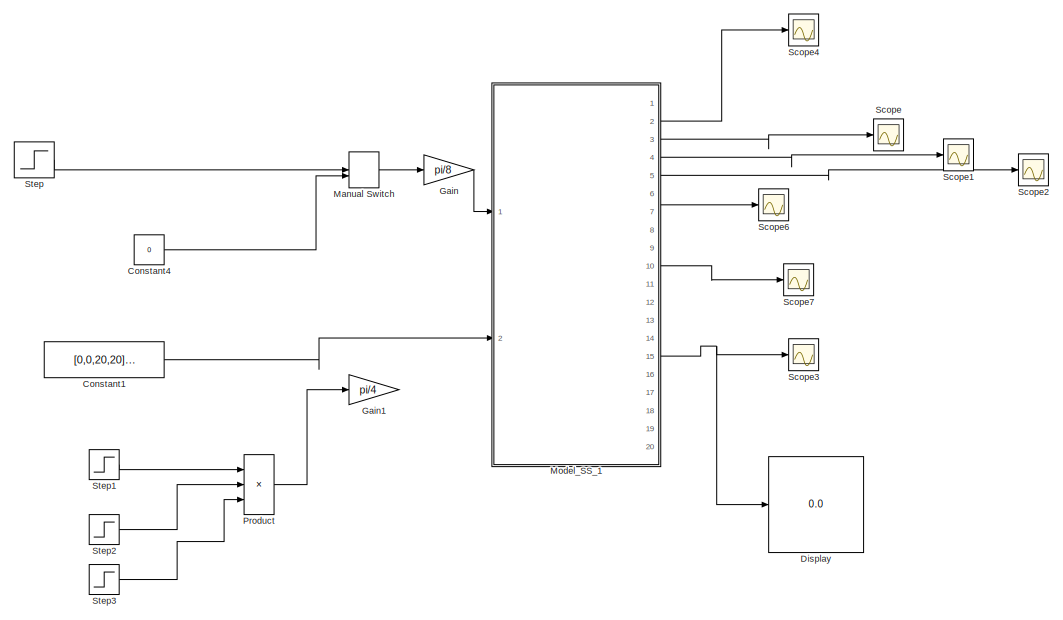
[diagram: root canvas - part 1/2, left side, full height]
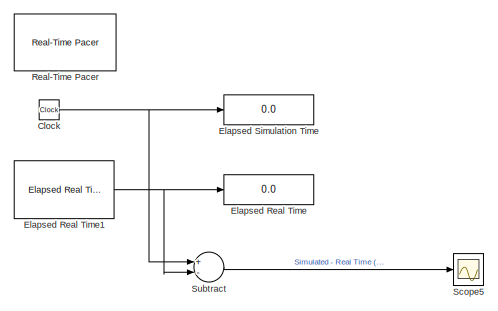
[diagram: root canvas - part 2/2, bottom right region]
MODEL slx_54ccdc9a7933
KIND model
CONFIG AbsTol = auto
CONFIG EnableMultiTasking = off
CONFIG FixedStep = auto
CONFIG MaxStep = auto
CONFIG MinStep = auto
CONFIG RelTol = 1e-3
CONFIG SampleTimeConstraint = Unconstrained
CONFIG Solver = ode45
CONFIG SolverName = ode45
CONFIG StartTime = 0.0
CONFIG StopTime = 50
BLOCK [Clock] Clock
BLOCK [Constant] Constant1
  Value = [0,0,20,20]*1
BLOCK [Constant] Constant4
  Value = 0
BLOCK [Display] Display
  Decimation = 1
  Ports = [1]
BLOCK [Display] Elapsed Real Time
  Decimation = 2
  Ports = [1]
BLOCK [Reference] Elapsed Real Time1  REF=realtime_pacer_lib/Elapsed Real Time
  Ports = [0, 1]
  SourceBlock = realtime_pacer_lib/Elapsed Real Time
  SourceType = RealTime_Elapsed
BLOCK [Display] Elapsed Simulation Time
  Decimation = 2
  Ports = [1]
BLOCK [Gain] Gain
  Gain = pi/8
  OutDataTypeStr = Inherit: Inherit via internal rule
  ParamDataTypeStr = Inherit: Inherit via internal rule
  SaturateOnIntegerOverflow = off
BLOCK [Gain] Gain1
  Gain = pi/4
  OutDataTypeStr = Inherit: Inherit via internal rule
  ParamDataTypeStr = Inherit: Inherit via internal rule
  SaturateOnIntegerOverflow = off
BLOCK [ManualSwitch] Manual Switch
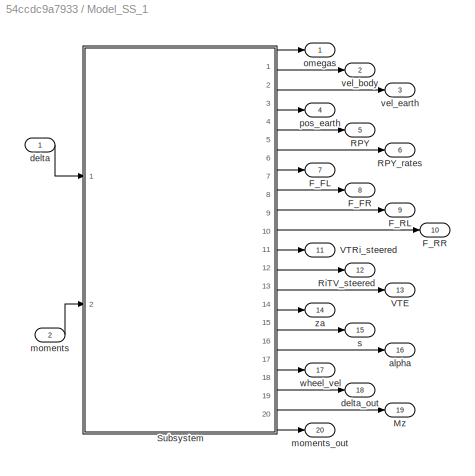
BLOCK [SubSystem] Model_SS_1
  Ports = [2, 20]
  RequestExecContextInheritance = off
  Variant = off
BLOCK [Outport] Model_SS_1/F_FL
  IconDisplay = Port number
  Port = 7
BLOCK [Outport] Model_SS_1/F_FR
  IconDisplay = Port number
  Port = 8
BLOCK [Outport] Model_SS_1/F_RL
  IconDisplay = Port number
  Port = 9
BLOCK [Outport] Model_SS_1/F_RR
  IconDisplay = Port number
  Port = 10
BLOCK [Outport] Model_SS_1/Mz
  IconDisplay = Port number
  Port = 19
BLOCK [Outport] Model_SS_1/RPY
  IconDisplay = Port number
  Port = 5
BLOCK [Outport] Model_SS_1/RPY_rates
  IconDisplay = Port number
  Port = 6
BLOCK [Outport] Model_SS_1/RiTV_steered
  IconDisplay = Port number
  Port = 12
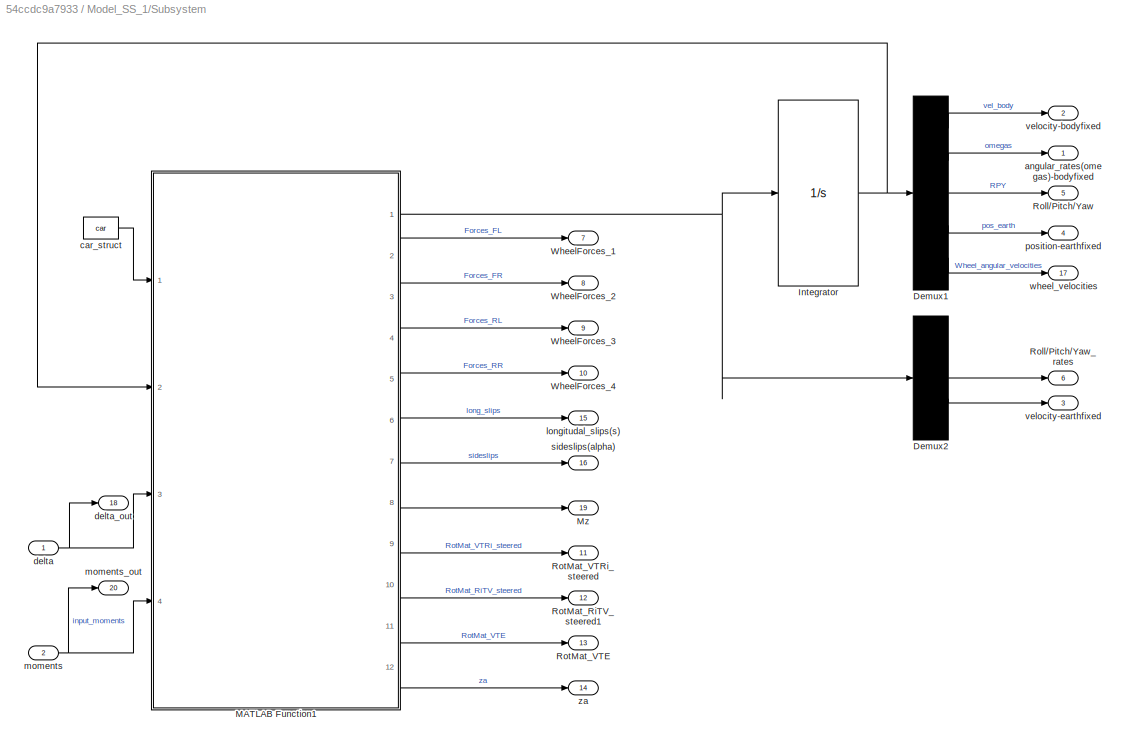
BLOCK [SubSystem] Model_SS_1/Subsystem
  Ports = [2, 20]
  RequestExecContextInheritance = off
  Variant = off
BLOCK [Demux] Model_SS_1/Subsystem/Demux1
  DisplayOption = bar
  Outputs = [3,3,3,3,4]
  Ports = [1, 5]
BLOCK [Demux] Model_SS_1/Subsystem/Demux2
  DisplayOption = bar
  Outputs = [3,3,3,3,4]
  Ports = [1, 5]
BLOCK [Integrator] Model_SS_1/Subsystem/Integrator
  InitialCondition = car_init
  Ports = [1, 1]
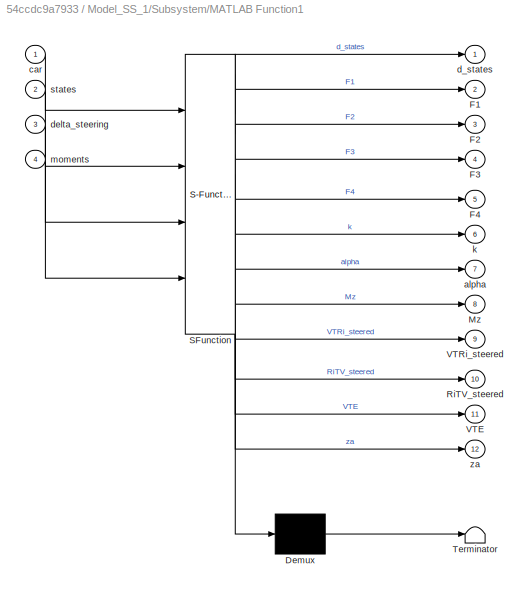
BLOCK [SubSystem] Model_SS_1/Subsystem/MATLAB Function1
  ErrorFcn = Stateflow.Translate.translate
  PermitHierarchicalResolution = ExplicitOnly
  Ports = [4, 12]
  RequestExecContextInheritance = off
  SFBlockType = MATLAB Function
  TreatAsAtomicUnit = on
  Variant = off
BLOCK [Demux] Model_SS_1/Subsystem/MATLAB Function1/ Demux 
  Outputs = 1
  Ports = [1, 1]
BLOCK [S-Function] Model_SS_1/Subsystem/MATLAB Function1/ SFunction 
  EnableBusSupport = on
  FunctionName = sf_sfun
  PortCounts = [4 13]
  Ports = [4, 13]
  SFcnIsStateOwnerBlock = off
  SFunctionDeploymentMode = off
  Tag = Stateflow S-Function test_IO_block_new_test 2
BLOCK [Terminator] Model_SS_1/Subsystem/MATLAB Function1/ Terminator 
BLOCK [Outport] Model_SS_1/Subsystem/MATLAB Function1/F1
  IconDisplay = Port number
  Port = 2
BLOCK [Outport] Model_SS_1/Subsystem/MATLAB Function1/F2
  IconDisplay = Port number
  Port = 3
BLOCK [Outport] Model_SS_1/Subsystem/MATLAB Function1/F3
  IconDisplay = Port number
  Port = 4
BLOCK [Outport] Model_SS_1/Subsystem/MATLAB Function1/F4
  IconDisplay = Port number
  Port = 5
BLOCK [Outport] Model_SS_1/Subsystem/MATLAB Function1/Mz
  IconDisplay = Port number
  Port = 8
BLOCK [Outport] Model_SS_1/Subsystem/MATLAB Function1/RiTV_steered
  IconDisplay = Port number
  Port = 10
BLOCK [Outport] Model_SS_1/Subsystem/MATLAB Function1/VTE
  IconDisplay = Port number
  Port = 11
BLOCK [Outport] Model_SS_1/Subsystem/MATLAB Function1/VTRi_steered
  IconDisplay = Port number
  Port = 9
BLOCK [Outport] Model_SS_1/Subsystem/MATLAB Function1/alpha
  IconDisplay = Port number
  Port = 7
BLOCK [Inport] Model_SS_1/Subsystem/MATLAB Function1/car
  IconDisplay = Port number
BLOCK [Outport] Model_SS_1/Subsystem/MATLAB Function1/d_states
  IconDisplay = Port number
BLOCK [Inport] Model_SS_1/Subsystem/MATLAB Function1/delta_steering
  IconDisplay = Port number
  Port = 3
BLOCK [Outport] Model_SS_1/Subsystem/MATLAB Function1/k
  IconDisplay = Port number
  Port = 6
BLOCK [Inport] Model_SS_1/Subsystem/MATLAB Function1/moments
  IconDisplay = Port number
  Port = 4
BLOCK [Inport] Model_SS_1/Subsystem/MATLAB Function1/states
  IconDisplay = Port number
  Port = 2
BLOCK [Outport] Model_SS_1/Subsystem/MATLAB Function1/za
  IconDisplay = Port number
  Port = 12
BLOCK [Outport] Model_SS_1/Subsystem/Mz
  IconDisplay = Port number
  Port = 19
BLOCK [Outport] Model_SS_1/Subsystem/Roll//Pitch//Yaw
  IconDisplay = Port number
  Port = 5
  PortDimensions = 3
BLOCK [Outport] Model_SS_1/Subsystem/Roll//Pitch//Yaw_rates
  IconDisplay = Port number
  Port = 6
  PortDimensions = 3
BLOCK [Outport] Model_SS_1/Subsystem/RotMat_RiTV_steered1
  IconDisplay = Port number
  Port = 12
BLOCK [Outport] Model_SS_1/Subsystem/RotMat_VTE
  IconDisplay = Port number
  Port = 13
BLOCK [Outport] Model_SS_1/Subsystem/RotMat_VTRi_steered
  IconDisplay = Port number
  Port = 11
BLOCK [Outport] Model_SS_1/Subsystem/WheelForces_1
  IconDisplay = Port number
  Port = 7
BLOCK [Outport] Model_SS_1/Subsystem/WheelForces_2
  IconDisplay = Port number
  Port = 8
BLOCK [Outport] Model_SS_1/Subsystem/WheelForces_3
  IconDisplay = Port number
  Port = 9
BLOCK [Outport] Model_SS_1/Subsystem/WheelForces_4
  IconDisplay = Port number
  Port = 10
BLOCK [Outport] Model_SS_1/Subsystem/angular_rates(omegas)-bodyfixed
  IconDisplay = Port number
  PortDimensions = 3
BLOCK [Constant] Model_SS_1/Subsystem/car_struct
  OutDataTypeStr = Bus: car_bus
  Value = car
BLOCK [Inport] Model_SS_1/Subsystem/delta
  IconDisplay = Port number
BLOCK [Outport] Model_SS_1/Subsystem/delta_out
  IconDisplay = Port number
  Port = 18
BLOCK [Outport] Model_SS_1/Subsystem/longitudal_slips(s)
  IconDisplay = Port number
  Port = 15
BLOCK [Inport] Model_SS_1/Subsystem/moments
  IconDisplay = Port number
  Port = 2
BLOCK [Outport] Model_SS_1/Subsystem/moments_out
  IconDisplay = Port number
  Port = 20
BLOCK [Outport] Model_SS_1/Subsystem/position-earthfixed
  IconDisplay = Port number
  Port = 4
  PortDimensions = 3
BLOCK [Outport] Model_SS_1/Subsystem/sideslips(alpha)
  IconDisplay = Port number
  Port = 16
BLOCK [Outport] Model_SS_1/Subsystem/velocity-bodyfixed
  IconDisplay = Port number
  Port = 2
  PortDimensions = 3
BLOCK [Outport] Model_SS_1/Subsystem/velocity-earthfixed
  IconDisplay = Port number
  Port = 3
  PortDimensions = 3
BLOCK [Outport] Model_SS_1/Subsystem/wheel_velocities
  IconDisplay = Port number
  Port = 17
BLOCK [Outport] Model_SS_1/Subsystem/za
  IconDisplay = Port number
  Port = 14
BLOCK [Outport] Model_SS_1/VTE
  IconDisplay = Port number
  Port = 13
BLOCK [Outport] Model_SS_1/VTRi_steered
  IconDisplay = Port number
  Port = 11
BLOCK [Outport] Model_SS_1/alpha
  IconDisplay = Port number
  Port = 16
BLOCK [Inport] Model_SS_1/delta
  IconDisplay = Port number
BLOCK [Outport] Model_SS_1/delta_out
  IconDisplay = Port number
  Port = 18
BLOCK [Inport] Model_SS_1/moments 
  IconDisplay = Port number
  Port = 2
  PortDimensions = 4
BLOCK [Outport] Model_SS_1/moments_out
  IconDisplay = Port number
  Port = 20
BLOCK [Outport] Model_SS_1/omegas
  IconDisplay = Port number
BLOCK [Outport] Model_SS_1/pos_earth
  IconDisplay = Port number
  Port = 4
BLOCK [Outport] Model_SS_1/s
  IconDisplay = Port number
  Port = 15
BLOCK [Outport] Model_SS_1/vel_body
  IconDisplay = Port number
  Port = 2
BLOCK [Outport] Model_SS_1/vel_earth
  IconDisplay = Port number
  Port = 3
BLOCK [Outport] Model_SS_1/wheel_vel
  IconDisplay = Port number
  Port = 17
BLOCK [Outport] Model_SS_1/za
  IconDisplay = Port number
  Port = 14
BLOCK [Product] Product
  InputSameDT = off
  Inputs = 3
  OutDataTypeStr = Inherit: Inherit via internal rule
  Ports = [3, 1]
  RndMeth = Floor
  SaturateOnIntegerOverflow = off
BLOCK [Reference] Real-Time Pacer  REF=realtime_pacer_lib/Real-Time Pacer
  Commented = on
  Ports = []
  SourceBlock = realtime_pacer_lib/Real-Time Pacer
  SourceType = RealTime_Pacer
BLOCK [Scope] Scope
  NumInputPorts = 1
  Ports = [1]
  ScopeSpecificationString = Simulink.scopes.TimeScopeBlockCfg('CurrentConfiguration', extmgr.ConfigurationSet(extmgr.Configuration('Core','General UI',true),extmgr.Configuration('Core','Source UI',true),extmgr.Configuration('Sources','WiredSimulink',true,'DataLoggingSaveFormat','Array','DataLoggingDecimation','1','DataLoggingDecimateData',true),extmgr.Configuration('Visuals','Time Domain',true,'SerializedDisplays',{struct('M...<+1679ch>
BLOCK [Scope] Scope1
  NumInputPorts = 1
  Ports = [1]
  ScopeSpecificationString = Simulink.scopes.TimeScopeBlockCfg('CurrentConfiguration', extmgr.ConfigurationSet(extmgr.Configuration('Core','General UI',true),extmgr.Configuration('Core','Source UI',true),extmgr.Configuration('Sources','WiredSimulink',true,'DataLoggingSaveFormat','Array','DataLoggingDecimation','1','DataLoggingDecimateData',true),extmgr.Configuration('Visuals','Time Domain',true,'SerializedDisplays',{struct('M...<+1598ch>
BLOCK [Scope] Scope2
  NumInputPorts = 1
  Ports = [1]
  ScopeSpecificationString = Simulink.scopes.TimeScopeBlockCfg('CurrentConfiguration', extmgr.ConfigurationSet(extmgr.Configuration('Core','General UI',true),extmgr.Configuration('Core','Source UI',true),extmgr.Configuration('Sources','WiredSimulink',true,'DataLoggingSaveFormat','Array','DataLoggingDecimation','1','DataLoggingDecimateData',true),extmgr.Configuration('Visuals','Time Domain',true,'SerializedDisplays',{struct('M...<+1653ch>
BLOCK [Scope] Scope3
  NumInputPorts = 1
  Ports = [1]
  ScopeSpecificationString = Simulink.scopes.TimeScopeBlockCfg('CurrentConfiguration', extmgr.ConfigurationSet(extmgr.Configuration('Core','General UI',true),extmgr.Configuration('Core','Source UI',true),extmgr.Configuration('Sources','WiredSimulink',true,'DataLoggingSaveFormat','Array','DataLoggingDecimation','1','DataLoggingDecimateData',true),extmgr.Configuration('Visuals','Time Domain',true,'SerializedDisplays',{struct('M...<+1730ch>
BLOCK [Scope] Scope4
  NumInputPorts = 1
  Ports = [1]
  ScopeSpecificationString = Simulink.scopes.TimeScopeBlockCfg('CurrentConfiguration', extmgr.ConfigurationSet(extmgr.Configuration('Core','General UI',true),extmgr.Configuration('Core','Source UI',true),extmgr.Configuration('Sources','WiredSimulink',true,'DataLoggingSaveFormat','Array','DataLoggingDecimation','1','DataLoggingDecimateData',true),extmgr.Configuration('Visuals','Time Domain',true,'SerializedDisplays',{struct('M...<+1681ch>
BLOCK [Scope] Scope5
  NumInputPorts = 1
  Ports = [1]
  ScopeSpecificationString = Simulink.scopes.TimeScopeBlockCfg('CurrentConfiguration', extmgr.ConfigurationSet(extmgr.Configuration('Core','General UI',true),extmgr.Configuration('Core','Source UI',true),extmgr.Configuration('Sources','WiredSimulink',true,'DataLoggingSaveFormat','StructureWithTime','DataLoggingDecimation','1','DataLoggingDecimateData',true,'DataLoggingVariableName','ScopeData1'),extmgr.Configuration('Visuals'...<+1745ch>
BLOCK [Scope] Scope6
  NumInputPorts = 1
  Ports = [1]
  ScopeSpecificationString = Simulink.scopes.TimeScopeBlockCfg('CurrentConfiguration', extmgr.ConfigurationSet(extmgr.Configuration('Core','General UI',true),extmgr.Configuration('Core','Source UI',true),extmgr.Configuration('Sources','WiredSimulink',true,'DataLoggingVariableName','ScopeData1'),extmgr.Configuration('Visuals','Time Domain',true,'SerializedDisplays',{struct('MinYLimReal','-991.88439','MaxYLimReal','6066.10327',...<+1474ch>
BLOCK [Scope] Scope7
  NumInputPorts = 1
  Ports = [1]
  ScopeSpecificationString = Simulink.scopes.TimeScopeBlockCfg('CurrentConfiguration', extmgr.ConfigurationSet(extmgr.Configuration('Core','General UI',true),extmgr.Configuration('Core','Source UI',true),extmgr.Configuration('Sources','WiredSimulink',true,'DataLoggingVariableName','ScopeData2'),extmgr.Configuration('Visuals','Time Domain',true,'SerializedDisplays',{struct('MinYLimReal','-5617.10894','MaxYLimReal','5565.72855'...<+1507ch>
BLOCK [Step] Step
  SampleTime = 0
  Time = 5
BLOCK [Step] Step1
  SampleTime = 0
  Time = 0
BLOCK [Step] Step2
  SampleTime = 0
  Time = 10
BLOCK [Step] Step3
  After = -1
  Before = 1
  SampleTime = 0
  Time = 20
BLOCK [Sum] Subtract
  InputSameDT = off
  Inputs = +-
  OutDataTypeStr = Inherit: Inherit via internal rule
  Ports = [2, 1]
  SaturateOnIntegerOverflow = off
NET Clock:1 -> Elapsed Simulation Time:1, Subtract:1
LINE Constant1:1 -> Model_SS_1:2
LINE Constant4:1 -> Manual Switch:2
NET Elapsed Real Time1:1 -> Elapsed Real Time:1, Subtract:2
LINE Gain:1 -> Model_SS_1:1
LINE Manual Switch:1 -> Gain:1
LINE Model_SS_1/Subsystem/Demux1:1 -> Model_SS_1/Subsystem/velocity-bodyfixed:1
LINE Model_SS_1/Subsystem/Demux1:2 -> Model_SS_1/Subsystem/angular_rates(omegas)-bodyfixed:1
LINE Model_SS_1/Subsystem/Demux1:3 -> Model_SS_1/Subsystem/Roll//Pitch//Yaw:1
LINE Model_SS_1/Subsystem/Demux1:4 -> Model_SS_1/Subsystem/position-earthfixed:1
LINE Model_SS_1/Subsystem/Demux1:5 -> Model_SS_1/Subsystem/wheel_velocities:1
LINE Model_SS_1/Subsystem/Demux2:3 -> Model_SS_1/Subsystem/Roll//Pitch//Yaw_rates:1
LINE Model_SS_1/Subsystem/Demux2:4 -> Model_SS_1/Subsystem/velocity-earthfixed:1
NET Model_SS_1/Subsystem/Integrator:1 -> Model_SS_1/Subsystem/Demux1:1, Model_SS_1/Subsystem/MATLAB Function1:2
NET Model_SS_1/Subsystem/MATLAB Function1:1 -> Model_SS_1/Subsystem/Demux2:1, Model_SS_1/Subsystem/Integrator:1
LINE Model_SS_1/Subsystem/MATLAB Function1:10 -> Model_SS_1/Subsystem/RotMat_RiTV_steered1:1
LINE Model_SS_1/Subsystem/MATLAB Function1:11 -> Model_SS_1/Subsystem/RotMat_VTE:1
LINE Model_SS_1/Subsystem/MATLAB Function1:12 -> Model_SS_1/Subsystem/za:1
LINE Model_SS_1/Subsystem/MATLAB Function1:2 -> Model_SS_1/Subsystem/WheelForces_1:1
LINE Model_SS_1/Subsystem/MATLAB Function1:3 -> Model_SS_1/Subsystem/WheelForces_2:1
LINE Model_SS_1/Subsystem/MATLAB Function1:4 -> Model_SS_1/Subsystem/WheelForces_3:1
LINE Model_SS_1/Subsystem/MATLAB Function1:5 -> Model_SS_1/Subsystem/WheelForces_4:1
LINE Model_SS_1/Subsystem/MATLAB Function1:6 -> Model_SS_1/Subsystem/longitudal_slips(s):1
LINE Model_SS_1/Subsystem/MATLAB Function1:7 -> Model_SS_1/Subsystem/sideslips(alpha):1
LINE Model_SS_1/Subsystem/MATLAB Function1:8 -> Model_SS_1/Subsystem/Mz:1
LINE Model_SS_1/Subsystem/MATLAB Function1:9 -> Model_SS_1/Subsystem/RotMat_VTRi_steered:1
LINE Model_SS_1/Subsystem/car_struct:1 -> Model_SS_1/Subsystem/MATLAB Function1:1
NET Model_SS_1/Subsystem/delta:1 -> Model_SS_1/Subsystem/MATLAB Function1:3, Model_SS_1/Subsystem/delta_out:1
NET Model_SS_1/Subsystem/moments:1 -> Model_SS_1/Subsystem/MATLAB Function1:4, Model_SS_1/Subsystem/moments_out:1
LINE Model_SS_1/Subsystem:1 -> Model_SS_1/omegas:1
LINE Model_SS_1/Subsystem:10 -> Model_SS_1/F_RR:1
LINE Model_SS_1/Subsystem:11 -> Model_SS_1/VTRi_steered:1
LINE Model_SS_1/Subsystem:12 -> Model_SS_1/RiTV_steered:1
LINE Model_SS_1/Subsystem:13 -> Model_SS_1/VTE:1
LINE Model_SS_1/Subsystem:14 -> Model_SS_1/za:1
LINE Model_SS_1/Subsystem:15 -> Model_SS_1/s:1
LINE Model_SS_1/Subsystem:16 -> Model_SS_1/alpha:1
LINE Model_SS_1/Subsystem:17 -> Model_SS_1/wheel_vel:1
LINE Model_SS_1/Subsystem:18 -> Model_SS_1/delta_out:1
LINE Model_SS_1/Subsystem:19 -> Model_SS_1/Mz:1
LINE Model_SS_1/Subsystem:2 -> Model_SS_1/vel_body:1
LINE Model_SS_1/Subsystem:20 -> Model_SS_1/moments_out:1
LINE Model_SS_1/Subsystem:3 -> Model_SS_1/vel_earth:1
LINE Model_SS_1/Subsystem:4 -> Model_SS_1/pos_earth:1
LINE Model_SS_1/Subsystem:5 -> Model_SS_1/RPY:1
LINE Model_SS_1/Subsystem:6 -> Model_SS_1/RPY_rates:1
LINE Model_SS_1/Subsystem:7 -> Model_SS_1/F_FL:1
LINE Model_SS_1/Subsystem:8 -> Model_SS_1/F_FR:1
LINE Model_SS_1/Subsystem:9 -> Model_SS_1/F_RL:1
LINE Model_SS_1/delta:1 -> Model_SS_1/Subsystem:1
LINE Model_SS_1/moments :1 -> Model_SS_1/Subsystem:2
LINE Model_SS_1:10 -> Scope7:1
NET Model_SS_1:15 -> Display:1, Scope3:1
LINE Model_SS_1:2 -> Scope4:1
LINE Model_SS_1:3 -> Scope:1
LINE Model_SS_1:4 -> Scope1:1
LINE Model_SS_1:5 -> Scope2:1
LINE Model_SS_1:7 -> Scope6:1
LINE Product:1 -> Gain1:1
LINE Step1:1 -> Product:1
LINE Step2:1 -> Product:2
LINE Step3:1 -> Product:3
LINE Step:1 -> Manual Switch:1
LINE Subtract:1 -> Scope5:1
note: NET lines group one-source signal fan-out (src -> all destinations, sorted); 1:1 wires keep LINE
CHART Model_SS_1/Subsystem/MATLAB Function1 states=1 transitions=1
  STATE_LABEL 'eML_blk_kernel()'
  STATE_LABEL 'SCRIPT:\nfunction [ d_states,F1,F2,F3,F4,k,alpha,Mz,VTRi_steered,RiTV_steered,VTE,za ] ...\n    = tiresBody( car,states,delta_steering,moments )\n\n[ d_states,F_R,k,alpha,Mz,VTRi_steered,RiTV_steered,VTE,za ] ...\n    = tires_and_body( car,states,delta_steering,moments );\n\nF1 = F_R(:,1);\nF2 = F_R(:,2);\nF3 = F_R(:,3);\nF4 = F_R(:,4);'
